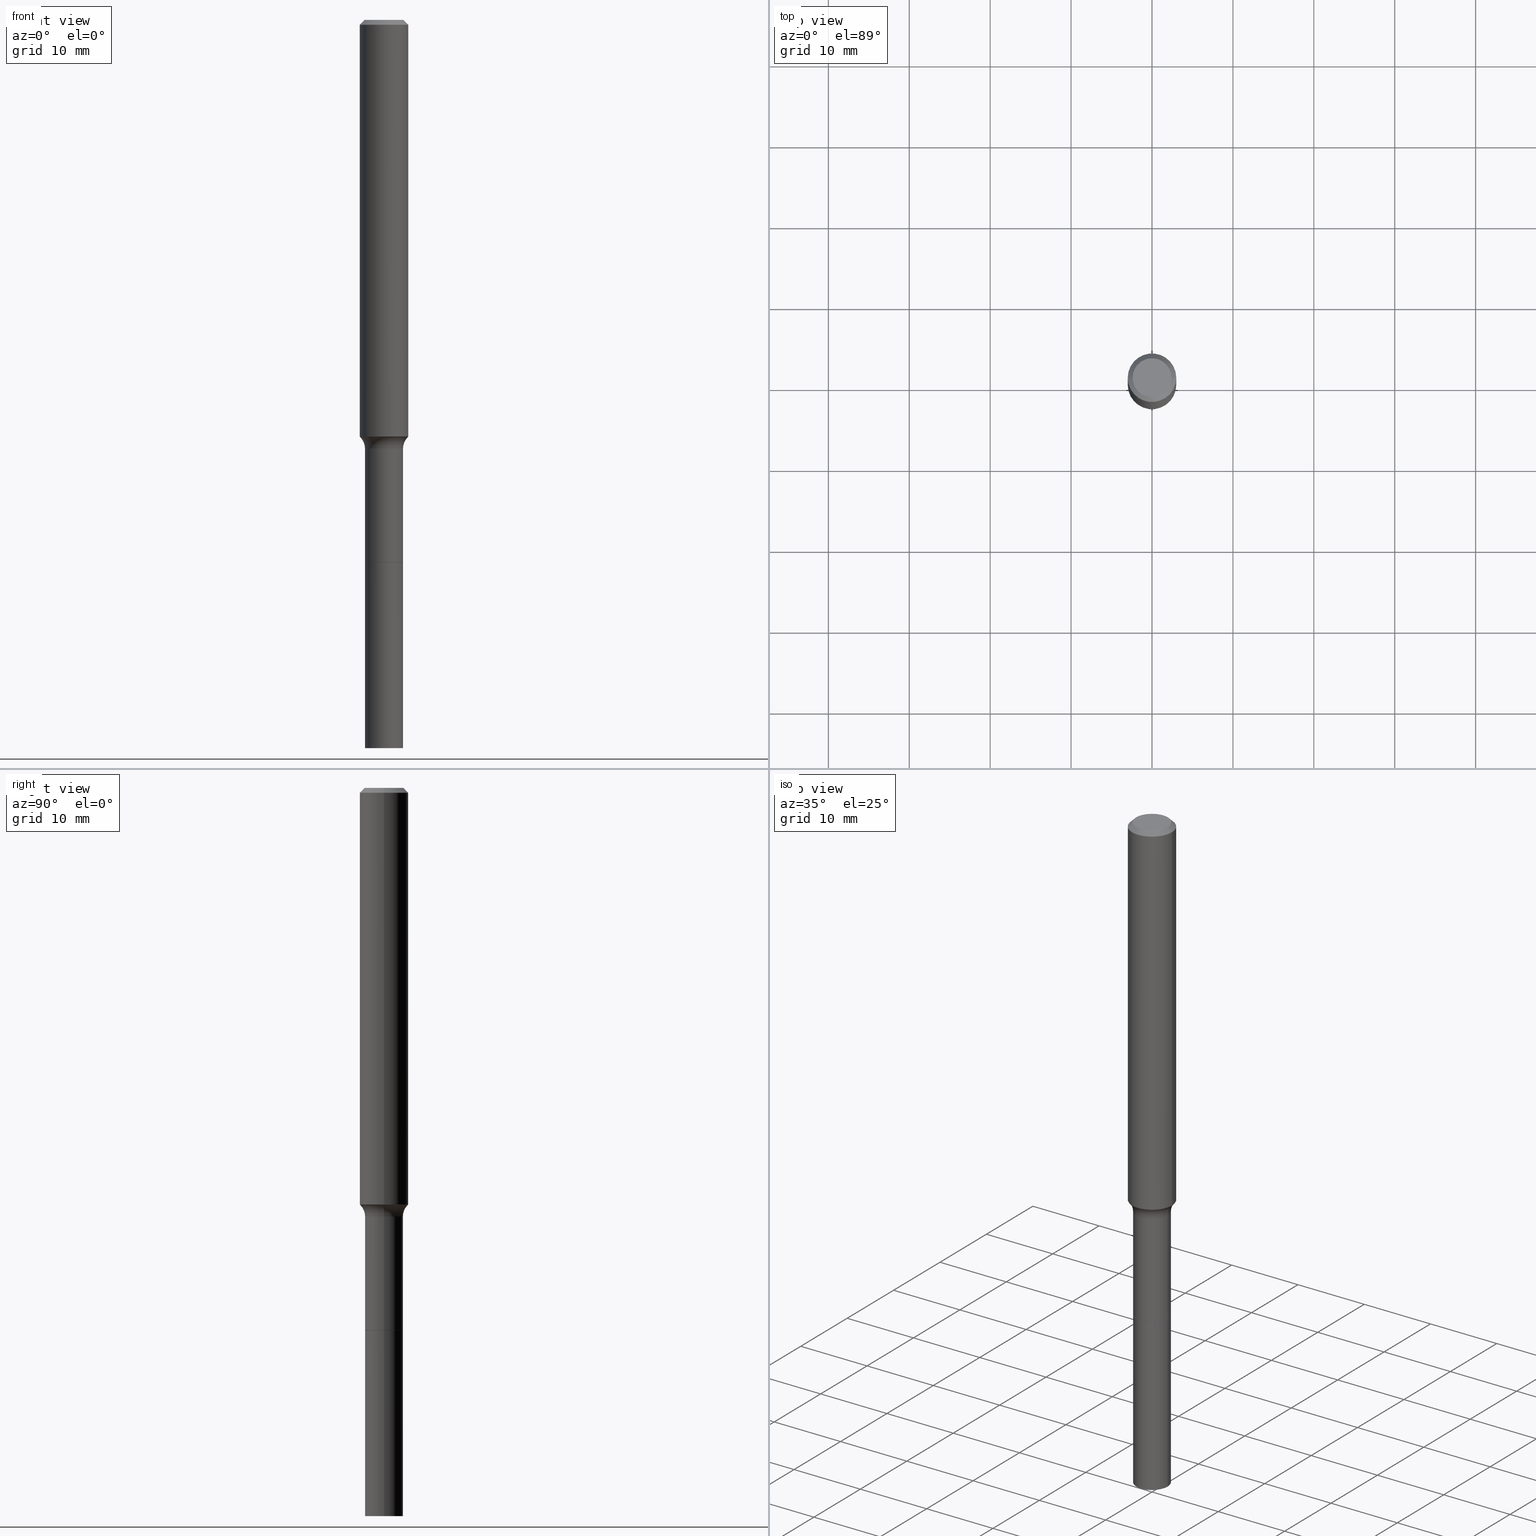
[diagram: canonical four-view strip — front | top / right | iso, engineering-drawing reading convention]
A machine part, canonical four-view strip (front | top / right | iso — engineering-drawing reading convention). The complete STEP part file that produces these views, byte-faithful:
ISO-10303-21;
HEADER;
FILE_DESCRIPTION (( 'STEP AP203' ),
    '1' );
FILE_NAME ('58879.STEP',
    '2025-04-01T15:26:24',
    ( '' ),
    ( '' ),
    'SwSTEP 2.0',
    'SolidWorks 2024',
    '' );
FILE_SCHEMA (( 'CONFIG_CONTROL_DESIGN' ));
ENDSEC;

DATA;
#1 = CARTESIAN_POINT ( 'NONE',  ( 0.1181000000000002603, -7.903088546791542426E-15, -2.027334522974172160 ) ) ;
#2 = ORIENTED_EDGE ( 'NONE', *, *, #515, .F. ) ;
#3 = LENGTH_MEASURE_WITH_UNIT ( LENGTH_MEASURE( 0.02539999999999999897 ), #186 );
#4 = DIRECTION ( 'NONE',  ( -2.445468806185136597E-29, 3.491481338843145583E-15, 1.000000000000000000 ) ) ;
#5 = ORIENTED_EDGE ( 'NONE', *, *, #459, .F. ) ;
#6 = CARTESIAN_POINT ( 'NONE',  ( -0.09250000000000022093, -1.013421849151829643E-14, -3.543299999999999894 ) ) ;
#7 = AXIS2_PLACEMENT_3D ( 'NONE', #282, #445, #153 ) ;
#8 = ORIENTED_EDGE ( 'NONE', *, *, #383, .F. ) ;
#9 = AXIS2_PLACEMENT_3D ( 'NONE', #264, #67, #237 ) ;
#10 = EDGE_CURVE ( 'NONE', #212, #517, #400, .T. ) ;
#11 = DATE_AND_TIME ( #448, #351 ) ;
#12 = ADVANCED_FACE ( 'NONE', ( #410 ), #379, .T. ) ;
#13 = LINE ( 'NONE', #413, #226 ) ;
#14 = CARTESIAN_POINT ( 'NONE',  ( 4.968557113111869030E-29, -7.093782753446065665E-15, -2.031740131194999854 ) ) ;
#15 = CC_DESIGN_DATE_AND_TIME_ASSIGNMENT ( #255, #421, ( #81 ) ) ;
#16 = CARTESIAN_POINT ( 'NONE',  ( 0.1181000000000001354, -8.246878922347490515E-16, 5.758764772215007447E-30 ) ) ;
#17 = ORIENTED_EDGE ( 'NONE', *, *, #112, .F. ) ;
#18 = APPROVAL_STATUS ( 'not_yet_approved' ) ;
#19 = FACE_OUTER_BOUND ( 'NONE', #395, .T. ) ;
#20 = VERTEX_POINT ( 'NONE', #370 ) ;
#21 = VECTOR ( 'NONE', #23, 39.37007874015748143 ) ;
#22 = VECTOR ( 'NONE', #168, 39.37007874015748143 ) ;
#23 = DIRECTION ( 'NONE',  ( -2.445468806185136877E-29, 3.491481338843145188E-15, 1.000000000000000000 ) ) ;
#24 = FACE_OUTER_BOUND ( 'NONE', #479, .T. ) ;
#25 = PERSON_AND_ORGANIZATION_ROLE ( 'classification_officer' ) ;
#26 = CARTESIAN_POINT ( 'NONE',  ( 0.000000000000000000, 0.000000000000000000, 0.000000000000000000 ) ) ;
#27 = DIRECTION ( 'NONE',  ( -2.445468806185136597E-29, 3.491481338843145583E-15, 1.000000000000000000 ) ) ;
#28 = AXIS2_PLACEMENT_3D ( 'NONE', #498, #220, #460 ) ;
#29 = ADVANCED_FACE ( 'NONE', ( #24 ), #256, .T. ) ;
#30 = DIRECTION ( 'NONE',  ( -2.445468806185136597E-29, 3.491481338843145583E-15, 1.000000000000000000 ) ) ;
#31 = CARTESIAN_POINT ( 'NONE',  ( 5.101981570344049922E-29, -7.284277517228453725E-15, -2.086299999999999599 ) ) ;
#32 = CARTESIAN_POINT ( 'NONE',  ( 6.451880351358246032E-29, -9.211575216269870974E-15, -2.638300000000000090 ) ) ;
#33 = CLOSED_SHELL ( 'NONE', ( #206, #505, #205, #462 ) ) ;
#34 = AXIS2_PLACEMENT_3D ( 'NONE', #321, #511, #307 ) ;
#35 = EDGE_LOOP ( 'NONE', ( #157, #242, #8, #154 ) ) ;
#36 = PRODUCT_DEFINITION_FORMATION_WITH_SPECIFIED_SOURCE ( 'ANY', '', #514, .NOT_KNOWN. ) ;
#37 = ORIENTED_EDGE ( 'NONE', *, *, #225, .T. ) ;
#38 = ORIENTED_EDGE ( 'NONE', *, *, #10, .F. ) ;
#39 = AXIS2_PLACEMENT_3D ( 'NONE', #451, #4, #481 ) ;
#40 = CARTESIAN_POINT ( 'NONE',  ( -0.09249999999999992950, -7.589801465836359131E-15, -2.086299999999999599 ) ) ;
#41 = ORIENTED_EDGE ( 'NONE', *, *, #342, .F. ) ;
#42 = FACE_OUTER_BOUND ( 'NONE', #45, .T. ) ;
#43 = DIRECTION ( 'NONE',  ( -2.445468806185136877E-29, 3.491481338843145188E-15, 1.000000000000000000 ) ) ;
#44 = APPROVAL_STATUS ( 'not_yet_approved' ) ;
#45 = EDGE_LOOP ( 'NONE', ( #457, #208, #276, #38 ) ) ;
#46 = EDGE_CURVE ( 'NONE', #84, #366, #299, .T. ) ;
#47 = CIRCLE ( 'NONE', #422, 0.09249999999999999889 ) ;
#48 = VERTEX_POINT ( 'NONE', #120 ) ;
#49 = FACE_OUTER_BOUND ( 'NONE', #122, .T. ) ;
#50 = CC_DESIGN_APPROVAL ( #444, ( #478 ) ) ;
#51 = ORIENTED_EDGE ( 'NONE', *, *, #63, .T. ) ;
#52 = DATE_AND_TIME ( #284, #274 ) ;
#53 = DIRECTION ( 'NONE',  ( -2.445468806185136597E-29, 3.491481338843145583E-15, 1.000000000000000000 ) ) ;
#54 = VERTEX_POINT ( 'NONE', #165 ) ;
#55 = DIRECTION ( 'NONE',  ( 1.000000000000000000, 0.000000000000000000, 0.000000000000000000 ) ) ;
#56 = DIRECTION ( 'NONE',  ( -1.000000000000000000, 6.982962677686265922E-15, -4.876176775795935793E-29 ) ) ;
#57 = ORIENTED_EDGE ( 'NONE', *, *, #225, .F. ) ;
#58 = CIRCLE ( 'NONE', #7, 0.09447999999999998066 ) ;
#59 = AXIS2_PLACEMENT_3D ( 'NONE', #228, #485, #66 ) ;
#60 = PERSON_AND_ORGANIZATION ( #418, #260 ) ;
#61 = CARTESIAN_POINT ( 'NONE',  ( 0.1181000000000000105, -8.926936027602935883E-16, -0.02362000000000015823 ) ) ;
#62 = CYLINDRICAL_SURFACE ( 'NONE', #143, 0.1181000000000001354 ) ;
#63 = EDGE_CURVE ( 'NONE', #296, #239, #47, .T. ) ;
#64 = DIRECTION ( 'NONE',  ( 2.438088387897960049E-29, -3.491481338843145188E-15, -1.000000000000000000 ) ) ;
#65 = AXIS2_PLACEMENT_3D ( 'NONE', #14, #133, #176 ) ;
#66 = DIRECTION ( 'NONE',  ( 1.000000000000000000, -6.982962677686265133E-15, 0.000000000000000000 ) ) ;
#67 = DIRECTION ( 'NONE',  ( -2.445468806185136597E-29, 3.491481338843145583E-15, 1.000000000000000000 ) ) ;
#68 = ORIENTED_EDGE ( 'NONE', *, *, #110, .T. ) ;
#69 = CIRCLE ( 'NONE', #376, 0.1181000000000002603 ) ;
#70 = AXIS2_PLACEMENT_3D ( 'NONE', #331, #53, #211 ) ;
#71 = CARTESIAN_POINT ( 'NONE',  ( 5.776197320209331911E-31, -8.246878922347565456E-17, -0.02362000000000015823 ) ) ;
#72 = VERTEX_POINT ( 'NONE', #1 ) ;
#73 = VERTEX_POINT ( 'NONE', #486 ) ;
#74 = ADVANCED_FACE ( 'NONE', ( #113 ), #159, .T. ) ;
#75 = DIRECTION ( 'NONE',  ( -2.445468806185136597E-29, 3.491481338843145583E-15, 1.000000000000000000 ) ) ;
#76 = AXIS2_PLACEMENT_3D ( 'NONE', #83, #86, #203 ) ;
#77 = VECTOR ( 'NONE', #387, 39.37007874015748143 ) ;
#78 = CARTESIAN_POINT ( 'NONE',  ( 6.451880351358246032E-29, -9.211575216269870974E-15, -2.638300000000000090 ) ) ;
#79 = VERTEX_POINT ( 'NONE', #440 ) ;
#80 = CARTESIAN_POINT ( 'NONE',  ( 8.665029620955794069E-29, -1.237136582792291707E-14, -3.543299999999999894 ) ) ;
#81 = SECURITY_CLASSIFICATION ( '', '', #455 ) ;
#82 = ADVANCED_FACE ( 'NONE', ( #319 ), #287, .F. ) ;
#83 = CARTESIAN_POINT ( 'NONE',  ( 6.451880351358246032E-29, -9.211575216269870974E-15, -2.638300000000000090 ) ) ;
#84 = VERTEX_POINT ( 'NONE', #6 ) ;
#85 = PERSON_AND_ORGANIZATION_ROLE ( 'creator' ) ;
#86 = DIRECTION ( 'NONE',  ( -2.445468806185136597E-29, 3.491481338843145583E-15, 1.000000000000000000 ) ) ;
#87 = ORIENTED_EDGE ( 'NONE', *, *, #382, .T. ) ;
#88 = CARTESIAN_POINT ( 'NONE',  ( 4.957783335635562174E-29, -7.078400654556792585E-15, -2.027334522974172160 ) ) ;
#89 = CIRCLE ( 'NONE', #129, 0.09249999999999992950 ) ;
#90 = CARTESIAN_POINT ( 'NONE',  ( 6.450657616955153231E-29, -9.209829475600448681E-15, -2.637799999999999923 ) ) ;
#91 = DIRECTION ( 'NONE',  ( 1.000000000000000000, -6.982962677686256455E-15, 0.000000000000000000 ) ) ;
#92 = EDGE_LOOP ( 'NONE', ( #372, #37, #111, #314 ) ) ;
#93 = FACE_OUTER_BOUND ( 'NONE', #35, .T. ) ;
#94 = ORIENTED_EDGE ( 'NONE', *, *, #221, .F. ) ;
#95 = DIRECTION ( 'NONE',  ( -0.6819983600625005860, 7.399397606724294465E-15, 0.7313537016191685725 ) ) ;
#96 = VECTOR ( 'NONE', #488, 39.37007874015748143 ) ;
#97 = CIRCLE ( 'NONE', #9, 0.09250000000000022093 ) ;
#98 = CARTESIAN_POINT ( 'NONE',  ( -0.1139917038704663654, -6.283822982225302336E-15, -2.031740131194999854 ) ) ;
#99 = EDGE_CURVE ( 'NONE', #296, #190, #13, .T. ) ;
#100 = EDGE_CURVE ( 'NONE', #73, #420, #58, .T. ) ;
#101 = LINE ( 'NONE', #508, #428 ) ;
#102 = FACE_OUTER_BOUND ( 'NONE', #200, .T. ) ;
#103 = CIRCLE ( 'NONE', #118, 0.09249999999999999889 ) ;
#104 = AXIS2_PLACEMENT_3D ( 'NONE', #173, #452, #337 ) ;
#105 = DIRECTION ( 'NONE',  ( -2.445468806185136597E-29, 3.491481338843145583E-15, 1.000000000000000000 ) ) ;
#106 = CARTESIAN_POINT ( 'NONE',  ( 6.450657616955153231E-29, -9.209829475600448681E-15, -2.637799999999999923 ) ) ;
#107 = ORIENTED_EDGE ( 'NONE', *, *, #243, .F. ) ;
#108 = DIRECTION ( 'NONE',  ( -1.000000000000000000, 7.105427357601005014E-15, 0.000000000000000000 ) ) ;
#109 = VERTEX_POINT ( 'NONE', #369 ) ;
#110 = EDGE_CURVE ( 'NONE', #54, #239, #489, .T. ) ;
#111 = ORIENTED_EDGE ( 'NONE', *, *, #286, .F. ) ;
#112 = EDGE_CURVE ( 'NONE', #20, #114, #449, .T. ) ;
#113 = FACE_OUTER_BOUND ( 'NONE', #192, .T. ) ;
#114 = VERTEX_POINT ( 'NONE', #322 ) ;
#115 = CARTESIAN_POINT ( 'NONE',  ( 6.451880351358246032E-29, -9.211575216269870974E-15, -2.638300000000000090 ) ) ;
#116 = EDGE_LOOP ( 'NONE', ( #277, #251, #169, #292 ) ) ;
#117 = DIRECTION ( 'NONE',  ( 2.445468806185136597E-29, -3.491481338843145583E-15, -1.000000000000000000 ) ) ;
#118 = AXIS2_PLACEMENT_3D ( 'NONE', #262, #261, #134 ) ;
#119 = DIRECTION ( 'NONE',  ( -2.445468806185136597E-29, 3.491481338843145583E-15, 1.000000000000000000 ) ) ;
#120 = CARTESIAN_POINT ( 'NONE',  ( -0.1139917038704663932, -6.283822982225302336E-15, -2.031740131194999854 ) ) ;
#121 = DIRECTION ( 'NONE',  ( 1.000000000000000000, -6.982962677686265133E-15, 0.000000000000000000 ) ) ;
#122 = EDGE_LOOP ( 'NONE', ( #496, #358, #417, #320 ) ) ;
#123 = APPROVAL_STATUS ( 'not_yet_approved' ) ;
#124 = DATE_TIME_ROLE ( 'creation_date' ) ;
#125 = DIRECTION ( 'NONE',  ( 1.000000000000000000, -6.982962677686269077E-15, 4.883557194083114022E-29 ) ) ;
#126 = ORIENTED_EDGE ( 'NONE', *, *, #167, .F. ) ;
#127 = APPROVAL_ROLE ( '' ) ;
#128 = FACE_OUTER_BOUND ( 'NONE', #254, .T. ) ;
#129 = AXIS2_PLACEMENT_3D ( 'NONE', #468, #218, #137 ) ;
#130 = ORIENTED_EDGE ( 'NONE', *, *, #221, .T. ) ;
#131 = CALENDAR_DATE ( 2025, 1, 4 ) ;
#132 = CARTESIAN_POINT ( 'NONE',  ( 6.451880351358246032E-29, -9.211575216269870974E-15, -2.638300000000000090 ) ) ;
#133 = DIRECTION ( 'NONE',  ( -2.445468806185136597E-29, 3.491481338843145583E-15, 1.000000000000000000 ) ) ;
#134 = DIRECTION ( 'NONE',  ( 1.000000000000000000, -6.982962677686265133E-15, 0.000000000000000000 ) ) ;
#135 = ADVANCED_FACE ( 'NONE', ( #49 ), #507, .T. ) ;
#136 = ADVANCED_FACE ( 'NONE', ( #164 ), #301, .F. ) ;
#137 = DIRECTION ( 'NONE',  ( 1.000000000000000000, -6.982962677686269866E-15, 0.000000000000000000 ) ) ;
#138 = CONICAL_SURFACE ( 'NONE', #350, 0.1181000000000000105, 0.7853981633974463916 ) ;
#139 = LINE ( 'NONE', #386, #22 ) ;
#140 = DIRECTION ( 'NONE',  ( -1.000000000000000000, 6.982962677686265922E-15, -4.876176775795935793E-29 ) ) ;
#141 = DIRECTION ( 'NONE',  ( 1.000000000000000000, -6.982962677686269866E-15, 0.000000000000000000 ) ) ;
#142 = CIRCLE ( 'NONE', #245, 0.09447999999999998066 ) ;
#143 = AXIS2_PLACEMENT_3D ( 'NONE', #219, #27, #179 ) ;
#144 = DIRECTION ( 'NONE',  ( 1.000000000000000000, -6.982962677686266711E-15, 4.876176775795935232E-29 ) ) ;
#145 = LOCAL_TIME ( 11, 26, 24.00000000000000000, #373 ) ;
#146 = DIRECTION ( 'NONE',  ( 1.000000000000000000, -6.982962677686269866E-15, 0.000000000000000000 ) ) ;
#147 = ORIENTED_EDGE ( 'NONE', *, *, #382, .F. ) ;
#148 = EDGE_CURVE ( 'NONE', #190, #517, #233, .T. ) ;
#149 = EDGE_CURVE ( 'NONE', #114, #398, #477, .T. ) ;
#150 = CIRCLE ( 'NONE', #180, 0.1139917038704663654 ) ;
#151 = PRODUCT_RELATED_PRODUCT_CATEGORY ( 'detail', '', ( #514 ) ) ;
#152 = ORIENTED_EDGE ( 'NONE', *, *, #459, .T. ) ;
#153 = DIRECTION ( 'NONE',  ( 1.000000000000000000, -6.982962677686267499E-15, 4.875432709231658792E-29 ) ) ;
#154 = ORIENTED_EDGE ( 'NONE', *, *, #177, .F. ) ;
#155 = DIRECTION ( 'NONE',  ( -2.445468806185136597E-29, 3.491481338843145583E-15, 1.000000000000000000 ) ) ;
#156 = LINE ( 'NONE', #16, #315 ) ;
#157 = ORIENTED_EDGE ( 'NONE', *, *, #286, .T. ) ;
#158 = PERSON_AND_ORGANIZATION ( #418, #260 ) ;
#159 = CONICAL_SURFACE ( 'NONE', #465, 0.09199999999999999845, 0.7853981633972775267 ) ;
#160 = CIRCLE ( 'NONE', #512, 0.08000000000000007105 ) ;
#161 = CARTESIAN_POINT ( 'NONE',  ( 0.09199999999999999845, -9.854007782617007953E-15, -2.638300000000000090 ) ) ;
#162 = EDGE_LOOP ( 'NONE', ( #17, #197, #484, #195 ) ) ;
#163 = APPROVAL_DATE_TIME ( #11, #318 ) ;
#164 = FACE_OUTER_BOUND ( 'NONE', #116, .T. ) ;
#165 = CARTESIAN_POINT ( 'NONE',  ( 0.09199999999999999845, -9.854007782617007953E-15, -2.638300000000000090 ) ) ;
#166 = PERSON_AND_ORGANIZATION ( #418, #260 ) ;
#167 = EDGE_CURVE ( 'NONE', #20, #72, #69, .T. ) ;
#168 = DIRECTION ( 'NONE',  ( -2.445468806185136877E-29, 3.491481338843145188E-15, 1.000000000000000000 ) ) ;
#169 = ORIENTED_EDGE ( 'NONE', *, *, #10, .T. ) ;
#170 = APPLICATION_PROTOCOL_DEFINITION ( 'international standard', 'config_control_design', 1994, #231 ) ;
#171 = CARTESIAN_POINT ( 'NONE',  ( 0.1139917038704663654, -7.889782567139397596E-15, -2.031740131194999854 ) ) ;
#172 = AXIS2_PLACEMENT_3D ( 'NONE', #433, #105, #430 ) ;
#173 = CARTESIAN_POINT ( 'NONE',  ( 0.000000000000000000, 0.000000000000000000, 0.000000000000000000 ) ) ;
#174 = APPLICATION_PROTOCOL_DEFINITION ( 'international standard', 'config_control_design', 1994, #377 ) ;
#175 = DIRECTION ( 'NONE',  ( -2.445468806185136597E-29, 3.491481338843145583E-15, 1.000000000000000000 ) ) ;
#176 = DIRECTION ( 'NONE',  ( 1.000000000000000000, -6.982962677686271444E-15, 0.000000000000000000 ) ) ;
#177 = EDGE_CURVE ( 'NONE', #72, #398, #156, .T. ) ;
#178 = DIRECTION ( 'NONE',  ( 0.7071067811865461294, -7.319954787623251312E-15, -0.7071067811865489050 ) ) ;
#179 = DIRECTION ( 'NONE',  ( 1.000000000000000000, -6.982962677686266711E-15, 4.876176775795936353E-29 ) ) ;
#180 = AXIS2_PLACEMENT_3D ( 'NONE', #316, #75, #399 ) ;
#181 = PLANE ( 'NONE',  #391 ) ;
#182 =( GEOMETRIC_REPRESENTATION_CONTEXT ( 3 ) GLOBAL_UNCERTAINTY_ASSIGNED_CONTEXT ( ( #193 ) ) GLOBAL_UNIT_ASSIGNED_CONTEXT ( ( #429, #348, #492 ) ) REPRESENTATION_CONTEXT ( 'NONE', 'WORKASPACE' ) );
#183 = DIRECTION ( 'NONE',  ( 7.105427357601001859E-15, 1.000000000000000000, -3.491481338843145583E-15 ) ) ;
#184 = MANIFOLD_SOLID_BREP ( 'Body-Move/Copy2[2]', #279 ) ;
#185 = CIRCLE ( 'NONE', #70, 0.1181000000000000105 ) ;
#186 =( LENGTH_UNIT ( ) NAMED_UNIT ( * ) SI_UNIT ( $, .METRE. ) );
#187 = EDGE_LOOP ( 'NONE', ( #491, #317 ) ) ;
#188 = LOCAL_TIME ( 11, 26, 24.00000000000000000, #367 ) ;
#189 = EDGE_CURVE ( 'NONE', #212, #48, #150, .T. ) ;
#190 = VERTEX_POINT ( 'NONE', #40 ) ;
#191 = CC_DESIGN_PERSON_AND_ORGANIZATION_ASSIGNMENT ( #293, #85, ( #36 ) ) ;
#192 = EDGE_LOOP ( 'NONE', ( #355, #273, #68, #518 ) ) ;
#193 = UNCERTAINTY_MEASURE_WITH_UNIT (LENGTH_MEASURE( 1.000000000000000082E-05 ), #429, 'distance_accuracy_value', 'NONE');
#194 = FACE_OUTER_BOUND ( 'NONE', #432, .T. ) ;
#195 = ORIENTED_EDGE ( 'NONE', *, *, #149, .F. ) ;
#196 = CARTESIAN_POINT ( 'NONE',  ( 5.101981570344049922E-29, -7.284277517228453725E-15, -2.086299999999999599 ) ) ;
#197 = ORIENTED_EDGE ( 'NONE', *, *, #167, .T. ) ;
#198 = MECHANICAL_CONTEXT ( 'NONE', #231, 'mechanical' ) ;
#199 = FACE_OUTER_BOUND ( 'NONE', #499, .T. ) ;
#200 = EDGE_LOOP ( 'NONE', ( #107, #392, #283, #401 ) ) ;
#201 = DIRECTION ( 'NONE',  ( 0.000000000000000000, 0.000000000000000000, 1.000000000000000000 ) ) ;
#202 = AXIS2_PLACEMENT_3D ( 'NONE', #224, #30, #146 ) ;
#203 = DIRECTION ( 'NONE',  ( 1.000000000000000000, -6.982962677686269866E-15, 0.000000000000000000 ) ) ;
#204 = DIRECTION ( 'NONE',  ( -6.982962677686266711E-15, -1.000000000000000000, 3.491481338843145583E-15 ) ) ;
#205 = ADVANCED_FACE ( 'NONE', ( #194 ), #357, .T. ) ;
#206 = ADVANCED_FACE ( 'NONE', ( #199 ), #365, .T. ) ;
#207 = DIRECTION ( 'NONE',  ( 0.7071067811864267805, -2.468850131080992517E-15, 0.7071067811866682540 ) ) ;
#208 = ORIENTED_EDGE ( 'NONE', *, *, #493, .T. ) ;
#209 = SHAPE_DEFINITION_REPRESENTATION ( #216, #464 ) ;
#210 = APPROVAL_DATE_TIME ( #334, #444 ) ;
#211 = DIRECTION ( 'NONE',  ( 1.000000000000000000, -6.982962677686267499E-15, 0.000000000000000000 ) ) ;
#212 = VERTEX_POINT ( 'NONE', #424 ) ;
#213 = FACE_OUTER_BOUND ( 'NONE', #92, .T. ) ;
#214 = AXIS2_PLACEMENT_3D ( 'NONE', #71, #117, #475 ) ;
#215 = ORIENTED_EDGE ( 'NONE', *, *, #342, .T. ) ;
#216 = PRODUCT_DEFINITION_SHAPE ( 'NONE', 'NONE',  #478 ) ;
#217 = COORDINATED_UNIVERSAL_TIME_OFFSET ( 5, 0, .BEHIND. ) ;
#218 = DIRECTION ( 'NONE',  ( -2.445468806185136597E-29, 3.491481338843145583E-15, 1.000000000000000000 ) ) ;
#219 = CARTESIAN_POINT ( 'NONE',  ( 0.000000000000000000, 0.000000000000000000, 0.000000000000000000 ) ) ;
#220 = DIRECTION ( 'NONE',  ( -2.445468806185136597E-29, 3.491481338843145583E-15, 1.000000000000000000 ) ) ;
#221 = EDGE_CURVE ( 'NONE', #406, #79, #257, .T. ) ;
#222 = DIRECTION ( 'NONE',  ( -2.445468806185136597E-29, 3.491481338843145583E-15, 1.000000000000000000 ) ) ;
#223 = DIRECTION ( 'NONE',  ( -2.445468806185136597E-29, 3.491481338843145583E-15, 1.000000000000000000 ) ) ;
#224 = CARTESIAN_POINT ( 'NONE',  ( 6.451880351358246032E-29, -9.211575216269870974E-15, -2.638300000000000090 ) ) ;
#225 = EDGE_CURVE ( 'NONE', #48, #20, #250, .T. ) ;
#226 = VECTOR ( 'NONE', #232, 39.37007874015748143 ) ;
#227 = AXIS2_PLACEMENT_3D ( 'NONE', #106, #223, #388 ) ;
#228 = CARTESIAN_POINT ( 'NONE',  ( 6.451880351358246032E-29, -9.211575216269870974E-15, -2.638300000000000090 ) ) ;
#229 = ORIENTED_EDGE ( 'NONE', *, *, #243, .T. ) ;
#230 = CC_DESIGN_PERSON_AND_ORGANIZATION_ASSIGNMENT ( #166, #404, ( #514 ) ) ;
#231 = APPLICATION_CONTEXT ( 'configuration controlled 3d designs of mechanical parts and assemblies' ) ;
#232 = DIRECTION ( 'NONE',  ( -2.445468806185136877E-29, 3.491481338843145188E-15, 1.000000000000000000 ) ) ;
#233 = CIRCLE ( 'NONE', #271, 0.09249999999999992950 ) ;
#234 = CIRCLE ( 'NONE', #345, 0.09199999999999999845 ) ;
#235 = DIRECTION ( 'NONE',  ( -2.438088387897960049E-29, 3.491481338843145188E-15, 1.000000000000000000 ) ) ;
#236 = ORIENTED_EDGE ( 'NONE', *, *, #397, .T. ) ;
#237 = DIRECTION ( 'NONE',  ( 1.000000000000000000, -6.982962677686269077E-15, 0.000000000000000000 ) ) ;
#238 = DIRECTION ( 'NONE',  ( -2.445468806185136597E-29, 3.491481338843145583E-15, 1.000000000000000000 ) ) ;
#239 = VERTEX_POINT ( 'NONE', #378 ) ;
#240 = PERSON_AND_ORGANIZATION ( #418, #260 ) ;
#241 = CARTESIAN_POINT ( 'NONE',  ( 6.451880351358246032E-29, -9.211575216269870974E-15, -2.638300000000000090 ) ) ;
#242 = ORIENTED_EDGE ( 'NONE', *, *, #112, .T. ) ;
#243 = EDGE_CURVE ( 'NONE', #420, #73, #142, .T. ) ;
#244 = ADVANCED_FACE ( 'NONE', ( #19 ), #384, .F. ) ;
#245 = AXIS2_PLACEMENT_3D ( 'NONE', #339, #419, #295 ) ;
#246 = DIRECTION ( 'NONE',  ( -2.445468806185136597E-29, 3.491481338843145583E-15, 1.000000000000000000 ) ) ;
#247 = DIRECTION ( 'NONE',  ( -2.445468806185136597E-29, 3.491481338843145583E-15, 1.000000000000000000 ) ) ;
#248 = APPROVAL_ROLE ( '' ) ;
#249 = CC_DESIGN_PERSON_AND_ORGANIZATION_ASSIGNMENT ( #408, #25, ( #81 ) ) ;
#250 = LINE ( 'NONE', #98, #487 ) ;
#251 = ORIENTED_EDGE ( 'NONE', *, *, #189, .F. ) ;
#252 = DATE_AND_TIME ( #131, #145 ) ;
#253 = DIRECTION ( 'NONE',  ( 2.445468806185136597E-29, -3.491481338843145583E-15, -1.000000000000000000 ) ) ;
#254 = EDGE_LOOP ( 'NONE', ( #353, #403, #332, #352 ) ) ;
#255 = DATE_AND_TIME ( #380, #446 ) ;
#256 = CONICAL_SURFACE ( 'NONE', #65, 0.1139917038704663654, 0.7504915783575645261 ) ;
#257 = LINE ( 'NONE', #300, #21 ) ;
#258 = CC_DESIGN_PERSON_AND_ORGANIZATION_ASSIGNMENT ( #158, #497, ( #478 ) ) ;
#259 = AXIS2_PLACEMENT_3D ( 'NONE', #516, #222, #144 ) ;
#260 = ORGANIZATION ( 'UNSPECIFIED', 'UNSPECIFIED', '' ) ;
#261 = DIRECTION ( 'NONE',  ( -2.445468806185136597E-29, 3.491481338843145583E-15, 1.000000000000000000 ) ) ;
#262 = CARTESIAN_POINT ( 'NONE',  ( 6.451880351358246032E-29, -9.211575216269870974E-15, -2.638300000000000090 ) ) ;
#263 = EDGE_CURVE ( 'NONE', #420, #398, #504, .T. ) ;
#264 = CARTESIAN_POINT ( 'NONE',  ( 8.665029620955794069E-29, -1.237136582792291707E-14, -3.543299999999999894 ) ) ;
#265 = VECTOR ( 'NONE', #207, 39.37007874015748143 ) ;
#266 = DIRECTION ( 'NONE',  ( 2.438088387897960049E-29, -3.491481338843145188E-15, -1.000000000000000000 ) ) ;
#267 = DIRECTION ( 'NONE',  ( 2.438088387897960049E-29, -3.491481338843145188E-15, -1.000000000000000000 ) ) ;
#268 = ORIENTED_EDGE ( 'NONE', *, *, #148, .F. ) ;
#269 = CARTESIAN_POINT ( 'NONE',  ( 0.1181000000000000105, -9.071566814582239172E-16, -0.02362000000000015823 ) ) ;
#270 = EDGE_LOOP ( 'NONE', ( #215, #152 ) ) ;
#271 = AXIS2_PLACEMENT_3D ( 'NONE', #196, #329, #360 ) ;
#272 = VECTOR ( 'NONE', #336, 39.37007874015748143 ) ;
#273 = ORIENTED_EDGE ( 'NONE', *, *, #515, .T. ) ;
#274 = LOCAL_TIME ( 11, 26, 24.00000000000000000, #278 ) ;
#275 = DIRECTION ( 'NONE',  ( -2.445468806185136877E-29, 3.491481338843145188E-15, 1.000000000000000000 ) ) ;
#276 = ORIENTED_EDGE ( 'NONE', *, *, #148, .T. ) ;
#277 = ORIENTED_EDGE ( 'NONE', *, *, #493, .F. ) ;
#278 = COORDINATED_UNIVERSAL_TIME_OFFSET ( 5, 0, .BEHIND. ) ;
#279 = CLOSED_SHELL ( 'NONE', ( #135, #453, #362, #288, #495, #12, #396, #136, #29, #354, #341, #244, #82, #74 ) ) ;
#280 = CYLINDRICAL_SURFACE ( 'NONE', #259, 0.09249999999999997113 ) ;
#281 = TOROIDAL_SURFACE ( 'NONE', #368, 0.1724999999999999312, 0.08000000000000007105 ) ;
#282 = CARTESIAN_POINT ( 'NONE',  ( 7.545787641473140628E-46, -1.077338491108201769E-31, -3.085620075131671975E-17 ) ) ;
#283 = ORIENTED_EDGE ( 'NONE', *, *, #383, .T. ) ;
#284 = CALENDAR_DATE ( 2025, 1, 4 ) ;
#285 = COORDINATED_UNIVERSAL_TIME_OFFSET ( 5, 0, .BEHIND. ) ;
#286 = EDGE_CURVE ( 'NONE', #72, #20, #343, .T. ) ;
#287 = PLANE ( 'NONE',  #310 ) ;
#288 = ADVANCED_FACE ( 'NONE', ( #213 ), #356, .T. ) ;
#289 = ORIENTED_EDGE ( 'NONE', *, *, #510, .T. ) ;
#290 = PERSON_AND_ORGANIZATION_ROLE ( 'design_supplier' ) ;
#291 = CARTESIAN_POINT ( 'NONE',  ( -0.1181000000000001354, 8.391509709326792818E-16, -5.809262341591050090E-30 ) ) ;
#292 = ORIENTED_EDGE ( 'NONE', *, *, #306, .T. ) ;
#293 = PERSON_AND_ORGANIZATION ( #418, #260 ) ;
#294 = AXIS2_PLACEMENT_3D ( 'NONE', #132, #175, #91 ) ;
#295 = DIRECTION ( 'NONE',  ( 1.000000000000000000, -6.982962677686267499E-15, 4.875432709231658792E-29 ) ) ;
#296 = VERTEX_POINT ( 'NONE', #506 ) ;
#297 = CARTESIAN_POINT ( 'NONE',  ( 0.000000000000000000, 0.000000000000000000, 0.000000000000000000 ) ) ;
#298 = DIRECTION ( 'NONE',  ( 1.000000000000000000, -6.982962677686265133E-15, 0.000000000000000000 ) ) ;
#299 = LINE ( 'NONE', #461, #96 ) ;
#300 = CARTESIAN_POINT ( 'NONE',  ( 0.09250000000000010991, -9.857499263955849382E-15, -2.638300000000000090 ) ) ;
#301 = TOROIDAL_SURFACE ( 'NONE', #470, 0.1724999999999999312, 0.08000000000000007105 ) ;
#302 = FACE_OUTER_BOUND ( 'NONE', #162, .T. ) ;
#303 = CIRCLE ( 'NONE', #202, 0.09199999999999999845 ) ;
#304 = CC_DESIGN_APPROVAL ( #407, ( #81 ) ) ;
#305 = DIRECTION ( 'NONE',  ( -2.445468806185136597E-29, 3.491481338843145583E-15, 1.000000000000000000 ) ) ;
#306 = EDGE_CURVE ( 'NONE', #517, #190, #89, .T. ) ;
#307 = DIRECTION ( 'NONE',  ( 1.000000000000000000, -6.982962677686269077E-15, 0.000000000000000000 ) ) ;
#308 = DIMENSIONAL_EXPONENTS ( 1.000000000000000000, 0.000000000000000000, 0.000000000000000000, 0.000000000000000000, 0.000000000000000000, 0.000000000000000000, 0.000000000000000000 ) ;
#309 = LINE ( 'NONE', #393, #77 ) ;
#310 = AXIS2_PLACEMENT_3D ( 'NONE', #241, #235, #409 ) ;
#311 = CIRCLE ( 'NONE', #34, 0.09250000000000022093 ) ;
#312 = CARTESIAN_POINT ( 'NONE',  ( 0.09250000000000022093, -1.301728987560889706E-14, -3.543299999999999894 ) ) ;
#313 = CARTESIAN_POINT ( 'NONE',  ( 6.451880351358246032E-29, -9.211575216269870974E-15, -2.638300000000000090 ) ) ;
#314 = ORIENTED_EDGE ( 'NONE', *, *, #389, .F. ) ;
#315 = VECTOR ( 'NONE', #275, 39.37007874015748143 ) ;
#316 = CARTESIAN_POINT ( 'NONE',  ( 4.968557113111869030E-29, -7.093782753446065665E-15, -2.031740131194999854 ) ) ;
#317 = ORIENTED_EDGE ( 'NONE', *, *, #425, .F. ) ;
#318 = APPROVAL ( #18, 'UNSPECIFIED' ) ;
#319 = FACE_OUTER_BOUND ( 'NONE', #447, .T. ) ;
#320 = ORIENTED_EDGE ( 'NONE', *, *, #110, .F. ) ;
#321 = CARTESIAN_POINT ( 'NONE',  ( 8.665029620955794069E-29, -1.237136582792291707E-14, -3.543299999999999894 ) ) ;
#322 = CARTESIAN_POINT ( 'NONE',  ( -0.1181000000000000105, -2.741283750957453458E-15, -0.02362000000000015823 ) ) ;
#323 = ORIENTED_EDGE ( 'NONE', *, *, #306, .F. ) ;
#324 = EDGE_CURVE ( 'NONE', #73, #114, #101, .T. ) ;
#325 = PERSON_AND_ORGANIZATION ( #418, #260 ) ;
#326 = CIRCLE ( 'NONE', #172, 0.1139917038704663654 ) ;
#327 = ORIENTED_EDGE ( 'NONE', *, *, #415, .F. ) ;
#328 = APPROVAL_PERSON_ORGANIZATION ( #60, #407, #248 ) ;
#329 = DIRECTION ( 'NONE',  ( -2.445468806185136597E-29, 3.491481338843145583E-15, 1.000000000000000000 ) ) ;
#330 = CARTESIAN_POINT ( 'NONE',  ( 0.1724999999999999312, -8.488838579129335364E-15, -2.086299999999999599 ) ) ;
#331 = CARTESIAN_POINT ( 'NONE',  ( 5.776197320209331911E-31, -8.246878922347565456E-17, -0.02362000000000015823 ) ) ;
#332 = ORIENTED_EDGE ( 'NONE', *, *, #324, .T. ) ;
#333 = APPROVAL_DATE_TIME ( #52, #407 ) ;
#334 = DATE_AND_TIME ( #364, #188 ) ;
#335 = AXIS2_PLACEMENT_3D ( 'NONE', #115, #238, #405 ) ;
#336 = DIRECTION ( 'NONE',  ( 0.6819983600625005860, -2.208861293262496708E-15, 0.7313537016191685725 ) ) ;
#337 = DIRECTION ( 'NONE',  ( 1.000000000000000000, -6.982962677686266711E-15, 4.876176775795935232E-29 ) ) ;
#338 = CC_DESIGN_PERSON_AND_ORGANIZATION_ASSIGNMENT ( #240, #290, ( #36 ) ) ;
#339 = CARTESIAN_POINT ( 'NONE',  ( 7.545787641473140628E-46, -1.077338491108201769E-31, -3.085620075131671975E-17 ) ) ;
#340 = CARTESIAN_POINT ( 'NONE',  ( 3.772893820736570314E-46, -5.386692455541008845E-32, -1.542810037565835988E-17 ) ) ;
#341 = ADVANCED_FACE ( 'NONE', ( #128 ), #138, .T. ) ;
#342 = EDGE_CURVE ( 'NONE', #79, #366, #103, .T. ) ;
#343 = CIRCLE ( 'NONE', #402, 0.1181000000000002603 ) ;
#344 = CARTESIAN_POINT ( 'NONE',  ( -0.09249999999999999889, -1.013421849151830116E-14, -2.638300000000000090 ) ) ;
#345 = AXIS2_PLACEMENT_3D ( 'NONE', #313, #155, #141 ) ;
#346 = CC_DESIGN_SECURITY_CLASSIFICATION ( #81, ( #36 ) ) ;
#347 = PLANE ( 'NONE',  #466 ) ;
#348 =( NAMED_UNIT ( * ) PLANE_ANGLE_UNIT ( ) SI_UNIT ( $, .RADIAN. ) );
#349 = AXIS2_PLACEMENT_3D ( 'NONE', #340, #64, #56 ) ;
#350 = AXIS2_PLACEMENT_3D ( 'NONE', #416, #253, #381 ) ;
#351 = LOCAL_TIME ( 11, 26, 24.00000000000000000, #285 ) ;
#352 = ORIENTED_EDGE ( 'NONE', *, *, #149, .T. ) ;
#353 = ORIENTED_EDGE ( 'NONE', *, *, #263, .F. ) ;
#354 = ADVANCED_FACE ( 'NONE', ( #302 ), #427, .T. ) ;
#355 = ORIENTED_EDGE ( 'NONE', *, *, #436, .F. ) ;
#356 = CONICAL_SURFACE ( 'NONE', #28, 0.1139917038704663654, 0.7504915783575645261 ) ;
#357 = CYLINDRICAL_SURFACE ( 'NONE', #335, 0.09250000000000010991 ) ;
#358 = ORIENTED_EDGE ( 'NONE', *, *, #436, .T. ) ;
#359 = DIRECTION ( 'NONE',  ( -2.445468806185136597E-29, 3.491481338843145583E-15, 1.000000000000000000 ) ) ;
#360 = DIRECTION ( 'NONE',  ( 1.000000000000000000, -6.982962677686269866E-15, 0.000000000000000000 ) ) ;
#361 = EDGE_LOOP ( 'NONE', ( #236, #435, #323, #147 ) ) ;
#362 = ADVANCED_FACE ( 'NONE', ( #93 ), #62, .T. ) ;
#363 = MANIFOLD_SOLID_BREP ( 'Body-Move/Copy2[1]', #33 ) ;
#364 = CALENDAR_DATE ( 2025, 1, 4 ) ;
#365 = CYLINDRICAL_SURFACE ( 'NONE', #294, 0.09250000000000010991 ) ;
#366 = VERTEX_POINT ( 'NONE', #344 ) ;
#367 = COORDINATED_UNIVERSAL_TIME_OFFSET ( 5, 0, .BEHIND. ) ;
#368 = AXIS2_PLACEMENT_3D ( 'NONE', #31, #359, #443 ) ;
#369 = CARTESIAN_POINT ( 'NONE',  ( -0.09199999999999999845, -8.555226672196466232E-15, -2.638300000000000090 ) ) ;
#370 = CARTESIAN_POINT ( 'NONE',  ( -0.1181000000000002603, -6.239249683624112022E-15, -2.027334522974172160 ) ) ;
#371 = DIRECTION ( 'NONE',  ( 1.000000000000000000, -6.982962677686265133E-15, 0.000000000000000000 ) ) ;
#372 = ORIENTED_EDGE ( 'NONE', *, *, #189, .T. ) ;
#373 = COORDINATED_UNIVERSAL_TIME_OFFSET ( 5, 0, .BEHIND. ) ;
#374 = LINE ( 'NONE', #171, #272 ) ;
#375 = ORIENTED_EDGE ( 'NONE', *, *, #100, .T. ) ;
#376 = AXIS2_PLACEMENT_3D ( 'NONE', #88, #246, #371 ) ;
#377 = APPLICATION_CONTEXT ( 'configuration controlled 3d designs of mechanical parts and assemblies' ) ;
#378 = CARTESIAN_POINT ( 'NONE',  ( 0.09249999999999999889, -9.855753523286427090E-15, -2.637799999999999923 ) ) ;
#379 = CYLINDRICAL_SURFACE ( 'NONE', #104, 0.09249999999999997113 ) ;
#380 = CALENDAR_DATE ( 2025, 1, 4 ) ;
#381 = DIRECTION ( 'NONE',  ( -1.000000000000000000, 6.982962677686267499E-15, 0.000000000000000000 ) ) ;
#382 = EDGE_CURVE ( 'NONE', #239, #517, #139, .T. ) ;
#383 = EDGE_CURVE ( 'NONE', #398, #114, #185, .T. ) ;
#384 = PLANE ( 'NONE',  #349 ) ;
#385 = CC_DESIGN_DATE_AND_TIME_ASSIGNMENT ( #252, #124, ( #478 ) ) ;
#386 = CARTESIAN_POINT ( 'NONE',  ( 0.09249999999999997113, -6.459240476859794932E-16, 4.510463517611238647E-30 ) ) ;
#387 = DIRECTION ( 'NONE',  ( -0.7071067811864267805, 7.493145998869918709E-15, 0.7071067811866682540 ) ) ;
#388 = DIRECTION ( 'NONE',  ( 1.000000000000000000, -6.982962677686265133E-15, 0.000000000000000000 ) ) ;
#389 = EDGE_CURVE ( 'NONE', #212, #72, #374, .T. ) ;
#390 = CARTESIAN_POINT ( 'NONE',  ( 0.09249999999999992950, -7.930201564914433712E-15, -2.086299999999999599 ) ) ;
#391 = AXIS2_PLACEMENT_3D ( 'NONE', #32, #266, #140 ) ;
#392 = ORIENTED_EDGE ( 'NONE', *, *, #263, .T. ) ;
#393 = CARTESIAN_POINT ( 'NONE',  ( -0.09199999999999999845, -8.557875899370578222E-15, -2.638300000000000090 ) ) ;
#394 = APPROVAL_PERSON_ORGANIZATION ( #503, #444, #458 ) ;
#395 = EDGE_LOOP ( 'NONE', ( #375, #229 ) ) ;
#396 = ADVANCED_FACE ( 'NONE', ( #501 ), #280, .T. ) ;
#397 = EDGE_CURVE ( 'NONE', #239, #296, #471, .T. ) ;
#398 = VERTEX_POINT ( 'NONE', #269 ) ;
#399 = DIRECTION ( 'NONE',  ( 1.000000000000000000, -6.982962677686271444E-15, 0.000000000000000000 ) ) ;
#400 = CIRCLE ( 'NONE', #411, 0.08000000000000007105 ) ;
#401 = ORIENTED_EDGE ( 'NONE', *, *, #324, .F. ) ;
#402 = AXIS2_PLACEMENT_3D ( 'NONE', #467, #305, #298 ) ;
#403 = ORIENTED_EDGE ( 'NONE', *, *, #100, .F. ) ;
#404 = PERSON_AND_ORGANIZATION_ROLE ( 'design_owner' ) ;
#405 = DIRECTION ( 'NONE',  ( 1.000000000000000000, -6.982962677686256455E-15, 0.000000000000000000 ) ) ;
#406 = VERTEX_POINT ( 'NONE', #312 ) ;
#407 = APPROVAL ( #123, 'UNSPECIFIED' ) ;
#408 = PERSON_AND_ORGANIZATION ( #418, #260 ) ;
#409 = DIRECTION ( 'NONE',  ( 1.000000000000000000, -6.982962677686265922E-15, 4.876176775795935793E-29 ) ) ;
#410 = FACE_OUTER_BOUND ( 'NONE', #361, .T. ) ;
#411 = AXIS2_PLACEMENT_3D ( 'NONE', #330, #204, #450 ) ;
#412 = DESIGN_CONTEXT ( 'detailed design', #377, 'design' ) ;
#413 = CARTESIAN_POINT ( 'NONE',  ( -0.09249999999999997113, 6.572520305780924668E-16, -4.550014958485786069E-30 ) ) ;
#414 = EDGE_LOOP ( 'NONE', ( #476, #51, #87, #268 ) ) ;
#415 = EDGE_CURVE ( 'NONE', #54, #109, #234, .T. ) ;
#416 = CARTESIAN_POINT ( 'NONE',  ( 5.776197320209331911E-31, -8.246878922347565456E-17, -0.02362000000000015823 ) ) ;
#417 = ORIENTED_EDGE ( 'NONE', *, *, #397, .F. ) ;
#418 = PERSON ( 'UNSPECIFIED', 'UNSPECIFIED', 'UNSPECIFIED', ('UNSPECIFIED'), ('UNSPECIFIED'), ('UNSPECIFIED') ) ;
#419 = DIRECTION ( 'NONE',  ( -2.445468806185136597E-29, 3.491481338843145583E-15, 1.000000000000000000 ) ) ;
#420 = VERTEX_POINT ( 'NONE', #469 ) ;
#421 = DATE_TIME_ROLE ( 'classification_date' ) ;
#422 = AXIS2_PLACEMENT_3D ( 'NONE', #90, #247, #121 ) ;
#423 = AXIS2_PLACEMENT_3D ( 'NONE', #26, #426, #463 ) ;
#424 = CARTESIAN_POINT ( 'NONE',  ( 0.1139917038704663932, -7.889782567139397596E-15, -2.031740131194999854 ) ) ;
#425 = EDGE_CURVE ( 'NONE', #84, #406, #311, .T. ) ;
#426 = DIRECTION ( 'NONE',  ( -2.445468806185136597E-29, 3.491481338843145583E-15, 1.000000000000000000 ) ) ;
#427 = CYLINDRICAL_SURFACE ( 'NONE', #423, 0.1181000000000001354 ) ;
#428 = VECTOR ( 'NONE', #456, 39.37007874015748143 ) ;
#429 =( CONVERSION_BASED_UNIT ( 'INCH', #3 ) LENGTH_UNIT ( ) NAMED_UNIT ( #308 ) );
#430 = DIRECTION ( 'NONE',  ( 1.000000000000000000, -6.982962677686271444E-15, 0.000000000000000000 ) ) ;
#431 = DIRECTION ( 'NONE',  ( -1.000000000000000000, 6.982962677686265922E-15, -4.876176775795935793E-29 ) ) ;
#432 = EDGE_LOOP ( 'NONE', ( #441, #439, #130, #5 ) ) ;
#433 = CARTESIAN_POINT ( 'NONE',  ( 4.968557113111869030E-29, -7.093782753446065665E-15, -2.031740131194999854 ) ) ;
#434 = CIRCLE ( 'NONE', #59, 0.09249999999999999889 ) ;
#435 = ORIENTED_EDGE ( 'NONE', *, *, #99, .T. ) ;
#436 = EDGE_CURVE ( 'NONE', #109, #296, #309, .T. ) ;
#437 = ORIENTED_EDGE ( 'NONE', *, *, #389, .T. ) ;
#438 = DIRECTION ( 'NONE',  ( 1.000000000000000000, -6.982962677686269866E-15, 0.000000000000000000 ) ) ;
#439 = ORIENTED_EDGE ( 'NONE', *, *, #425, .T. ) ;
#440 = CARTESIAN_POINT ( 'NONE',  ( 0.09249999999999999889, -9.857499263955849382E-15, -2.638300000000000090 ) ) ;
#441 = ORIENTED_EDGE ( 'NONE', *, *, #46, .F. ) ;
#442 = CONICAL_SURFACE ( 'NONE', #214, 0.1181000000000000105, 0.7853981633974463916 ) ;
#443 = DIRECTION ( 'NONE',  ( 1.000000000000000000, -6.982962677686269077E-15, 4.883557194083114022E-29 ) ) ;
#444 = APPROVAL ( #44, 'UNSPECIFIED' ) ;
#445 = DIRECTION ( 'NONE',  ( -2.445468806185136597E-29, 3.491481338843145583E-15, 1.000000000000000000 ) ) ;
#446 = LOCAL_TIME ( 11, 26, 24.00000000000000000, #217 ) ;
#447 = EDGE_LOOP ( 'NONE', ( #327, #2 ) ) ;
#448 = CALENDAR_DATE ( 2025, 1, 4 ) ;
#449 = LINE ( 'NONE', #291, #454 ) ;
#450 = DIRECTION ( 'NONE',  ( 1.000000000000000000, -6.982962677686253300E-15, 0.000000000000000000 ) ) ;
#451 = CARTESIAN_POINT ( 'NONE',  ( 5.776197320209331911E-31, -8.246878922347565456E-17, -0.02362000000000015823 ) ) ;
#452 = DIRECTION ( 'NONE',  ( -2.445468806185136597E-29, 3.491481338843145583E-15, 1.000000000000000000 ) ) ;
#453 = ADVANCED_FACE ( 'NONE', ( #102 ), #442, .T. ) ;
#454 = VECTOR ( 'NONE', #43, 39.37007874015748143 ) ;
#455 = SECURITY_CLASSIFICATION_LEVEL ( 'unclassified' ) ;
#456 = DIRECTION ( 'NONE',  ( -0.7071067811865461294, 2.468850131082242072E-15, -0.7071067811865489050 ) ) ;
#457 = ORIENTED_EDGE ( 'NONE', *, *, #474, .F. ) ;
#458 = APPROVAL_ROLE ( '' ) ;
#459 = EDGE_CURVE ( 'NONE', #366, #79, #434, .T. ) ;
#460 = DIRECTION ( 'NONE',  ( 1.000000000000000000, -6.982962677686271444E-15, 0.000000000000000000 ) ) ;
#461 = CARTESIAN_POINT ( 'NONE',  ( -0.09250000000000010991, -8.554323185691776535E-15, -2.638300000000000090 ) ) ;
#462 = ADVANCED_FACE ( 'NONE', ( #472 ), #181, .F. ) ;
#463 = DIRECTION ( 'NONE',  ( 1.000000000000000000, -6.982962677686266711E-15, 4.876176775795936353E-29 ) ) ;
#464 = ADVANCED_BREP_SHAPE_REPRESENTATION ( '58879', ( #363, #184, #490 ), #182 ) ;
#465 = AXIS2_PLACEMENT_3D ( 'NONE', #78, #119, #438 ) ;
#466 = AXIS2_PLACEMENT_3D ( 'NONE', #80, #267, #431 ) ;
#467 = CARTESIAN_POINT ( 'NONE',  ( 4.957783335635562174E-29, -7.078400654556792585E-15, -2.027334522974172160 ) ) ;
#468 = CARTESIAN_POINT ( 'NONE',  ( 5.101981570344049922E-29, -7.284277517228453725E-15, -2.086299999999999599 ) ) ;
#469 = CARTESIAN_POINT ( 'NONE',  ( 0.09447999999999998066, -7.704367267948739676E-16, -3.085620075131172158E-17 ) ) ;
#470 = AXIS2_PLACEMENT_3D ( 'NONE', #483, #494, #125 ) ;
#471 = CIRCLE ( 'NONE', #227, 0.09249999999999999889 ) ;
#472 = FACE_OUTER_BOUND ( 'NONE', #270, .T. ) ;
#473 = CARTESIAN_POINT ( 'NONE',  ( -0.1724999999999999312, -6.058591298042282577E-15, -2.086299999999999599 ) ) ;
#474 = EDGE_CURVE ( 'NONE', #48, #212, #326, .T. ) ;
#475 = DIRECTION ( 'NONE',  ( -1.000000000000000000, 6.982962677686267499E-15, 0.000000000000000000 ) ) ;
#476 = ORIENTED_EDGE ( 'NONE', *, *, #99, .F. ) ;
#477 = CIRCLE ( 'NONE', #39, 0.1181000000000000105 ) ;
#478 = PRODUCT_DEFINITION ( 'UNKNOWN', '', #36, #412 ) ;
#479 = EDGE_LOOP ( 'NONE', ( #57, #482, #437, #126 ) ) ;
#480 = CC_DESIGN_APPROVAL ( #318, ( #36 ) ) ;
#481 = DIRECTION ( 'NONE',  ( 1.000000000000000000, -6.982962677686267499E-15, 0.000000000000000000 ) ) ;
#482 = ORIENTED_EDGE ( 'NONE', *, *, #474, .T. ) ;
#483 = CARTESIAN_POINT ( 'NONE',  ( 5.101981570344049922E-29, -7.284277517228453725E-15, -2.086299999999999599 ) ) ;
#484 = ORIENTED_EDGE ( 'NONE', *, *, #177, .T. ) ;
#485 = DIRECTION ( 'NONE',  ( -2.445468806185136597E-29, 3.491481338843145583E-15, 1.000000000000000000 ) ) ;
#486 = CARTESIAN_POINT ( 'NONE',  ( -0.09447999999999998066, 7.009847083995354710E-16, -3.085620075132147757E-17 ) ) ;
#487 = VECTOR ( 'NONE', #95, 39.37007874015748143 ) ;
#488 = DIRECTION ( 'NONE',  ( -2.445468806185136877E-29, 3.491481338843145188E-15, 1.000000000000000000 ) ) ;
#489 = LINE ( 'NONE', #161, #265 ) ;
#490 = AXIS2_PLACEMENT_3D ( 'NONE', #297, #201, #55 ) ;
#491 = ORIENTED_EDGE ( 'NONE', *, *, #510, .F. ) ;
#492 =( NAMED_UNIT ( * ) SI_UNIT ( $, .STERADIAN. ) SOLID_ANGLE_UNIT ( ) );
#493 = EDGE_CURVE ( 'NONE', #48, #190, #160, .T. ) ;
#494 = DIRECTION ( 'NONE',  ( -2.445468806185136597E-29, 3.491481338843145583E-15, 1.000000000000000000 ) ) ;
#495 = ADVANCED_FACE ( 'NONE', ( #42 ), #281, .F. ) ;
#496 = ORIENTED_EDGE ( 'NONE', *, *, #415, .T. ) ;
#497 = PERSON_AND_ORGANIZATION_ROLE ( 'creator' ) ;
#498 = CARTESIAN_POINT ( 'NONE',  ( 4.968557113111869030E-29, -7.093782753446065665E-15, -2.031740131194999854 ) ) ;
#499 = EDGE_LOOP ( 'NONE', ( #289, #502, #41, #94 ) ) ;
#500 = VECTOR ( 'NONE', #178, 39.37007874015748143 ) ;
#501 = FACE_OUTER_BOUND ( 'NONE', #414, .T. ) ;
#502 = ORIENTED_EDGE ( 'NONE', *, *, #46, .T. ) ;
#503 = PERSON_AND_ORGANIZATION ( #418, #260 ) ;
#504 = LINE ( 'NONE', #61, #500 ) ;
#505 = ADVANCED_FACE ( 'NONE', ( #513 ), #347, .T. ) ;
#506 = CARTESIAN_POINT ( 'NONE',  ( -0.09249999999999999889, -7.589801465836359131E-15, -2.637799999999999923 ) ) ;
#507 = CONICAL_SURFACE ( 'NONE', #76, 0.09199999999999999845, 0.7853981633972775267 ) ;
#508 = CARTESIAN_POINT ( 'NONE',  ( -0.1181000000000000105, 7.422191030112725094E-16, -0.02362000000000015823 ) ) ;
#509 = APPROVAL_PERSON_ORGANIZATION ( #325, #318, #127 ) ;
#510 = EDGE_CURVE ( 'NONE', #406, #84, #97, .T. ) ;
#511 = DIRECTION ( 'NONE',  ( -2.445468806185136597E-29, 3.491481338843145583E-15, 1.000000000000000000 ) ) ;
#512 = AXIS2_PLACEMENT_3D ( 'NONE', #473, #183, #108 ) ;
#513 = FACE_OUTER_BOUND ( 'NONE', #187, .T. ) ;
#514 = PRODUCT ( '58879', '58879', '', ( #198 ) ) ;
#515 = EDGE_CURVE ( 'NONE', #109, #54, #303, .T. ) ;
#516 = CARTESIAN_POINT ( 'NONE',  ( 0.000000000000000000, 0.000000000000000000, 0.000000000000000000 ) ) ;
#517 = VERTEX_POINT ( 'NONE', #390 ) ;
#518 = ORIENTED_EDGE ( 'NONE', *, *, #63, .F. ) ;
ENDSEC;
END-ISO-10303-21;
